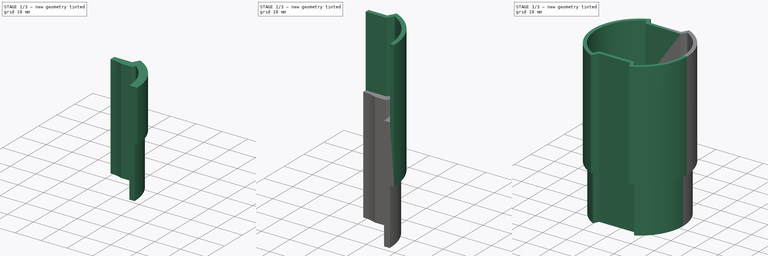
[diagram: build sequence overview — one tinted view per stage of 3, left to right]
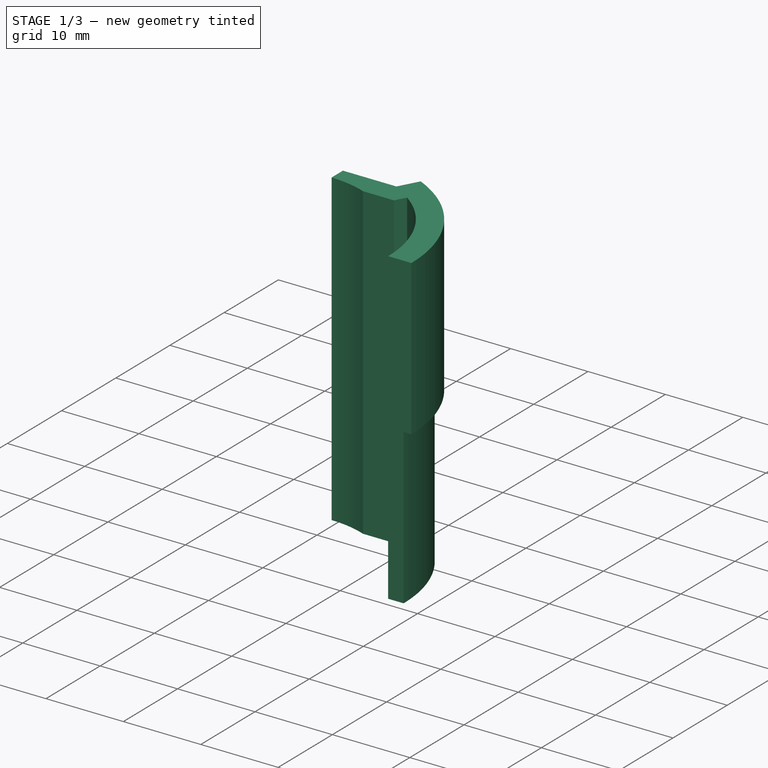
[diagram: stage 1 of 3 — iso view after this stage's code; geometry added in this stage tinted green]
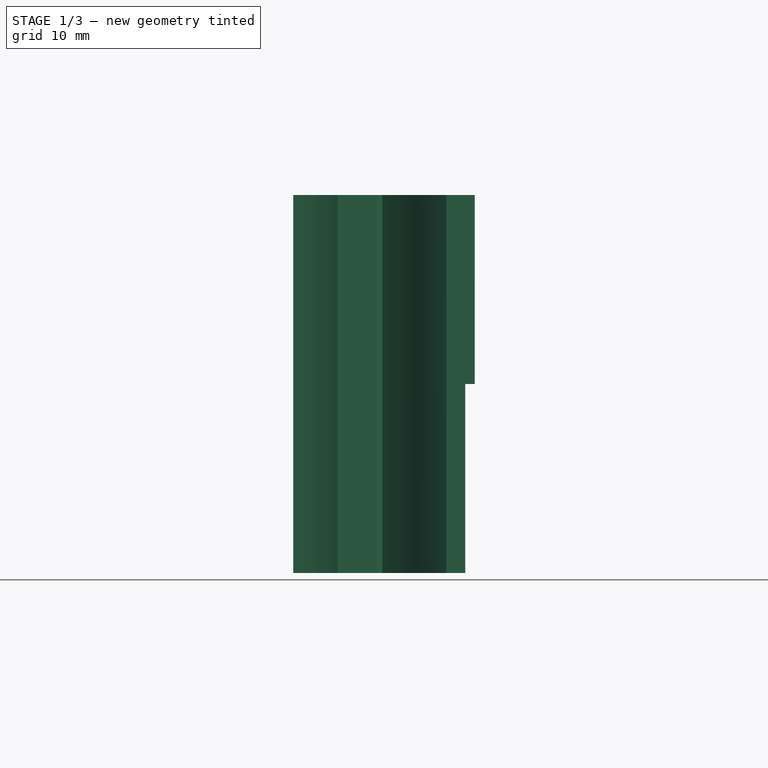
[diagram: stage 1 of 3 — front view after this stage's code; geometry added in this stage tinted green]
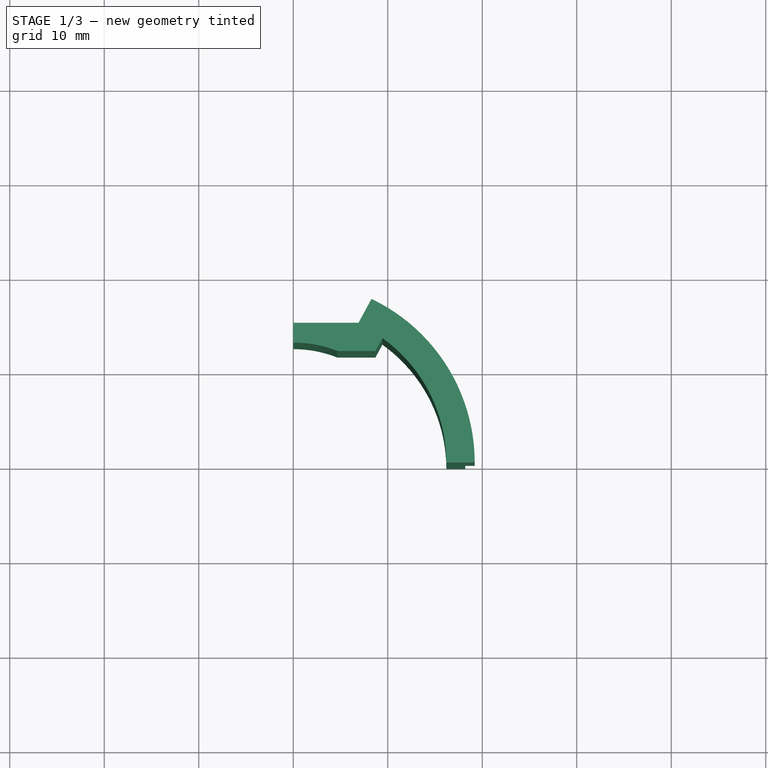
[diagram: stage 1 of 3 — top view after this stage's code; geometry added in this stage tinted green]
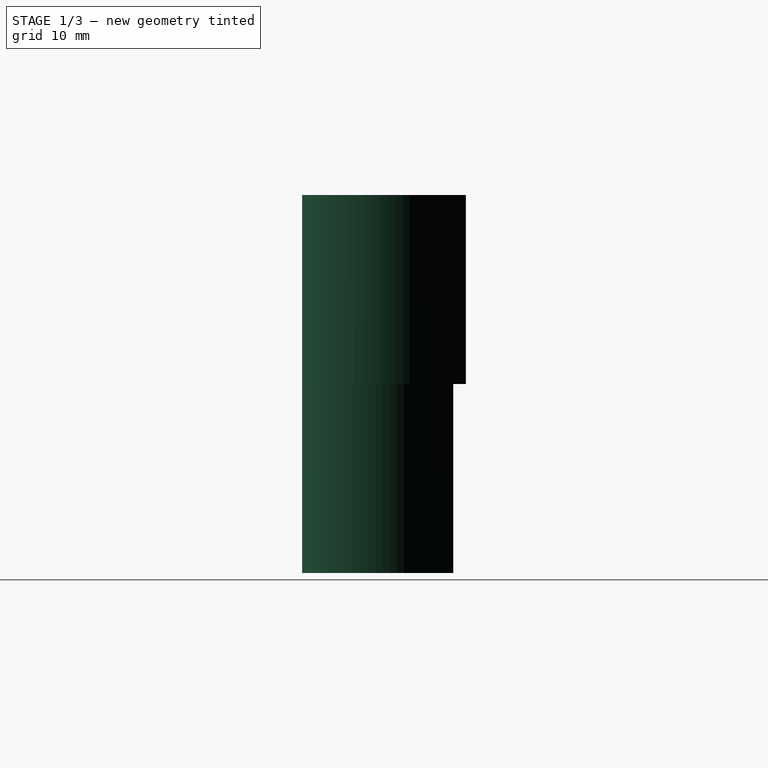
[diagram: stage 1 of 3 — right view after this stage's code; geometry added in this stage tinted green]
FCSTD DOCUMENT  (FreeCAD 1.0R39109 (Git))
Label: TubeExtender
License: All rights reserved
LicenseURL: http://en.wikipedia.org/wiki/All_rights_reserved
objects: Sketcher::SketchObject×3, PartDesign::Pad×3, PartDesign::Mirrored×2, PartDesign::Chamfer×1, PartDesign::MultiTransform×1, PartDesign::Body×1
note: 25 computed .brp shape members not serialized (recipe doc carries the construction recipe); baked Part::Feature solids carry a one-line shape summary decoded from their .brp

FEATURE [Sketcher::SketchObject] Sketch
  ArcFitTolerance = 1e-06
  AttachmentSupport = -> [XY_Plane]
  FullyConstrained = true
  MakeInternals = false
  MapMode = 5
  sketch-geometry (11):
    g0: ArcOfCircle CenterX=0 CenterY=0 CenterZ=0 NormalX=0 NormalY=0 NormalZ=1 AngleXU=0 Radius=18.2 StartAngle=0 EndAngle=1.07297
    g1: LineSegment StartX=0 StartY=13.8 StartZ=0 EndX=7.5 EndY=13.8 EndZ=0
    g2: LineSegment StartX=8.69074 StartY=15.991 StartZ=0 EndX=7.5 EndY=13.8 EndZ=0
    g3: ArcOfCircle CenterX=0 CenterY=0 CenterZ=0 NormalX=0 NormalY=0 NormalZ=1 AngleXU=0 Radius=16.2 StartAngle=0 EndAngle=0.949201
    g4: LineSegment StartX=16.2 StartY=0 StartZ=0 EndX=18.2 EndY=0 EndZ=0
    g5: LineSegment StartX=0 StartY=12.7 StartZ=0 EndX=0 EndY=13.8 EndZ=0
    g6: LineSegment [constr] StartX=7.5 StartY=13.8 StartZ=0 EndX=9.25725 EndY=12.845 EndZ=0
    g7: LineSegment StartX=9.43379 StartY=13.1698 StartZ=0 EndX=8.68933 EndY=11.8 EndZ=0
    g8: LineSegment StartX=8.68933 StartY=11.8 StartZ=0 EndX=4.69574 EndY=11.8 EndZ=0
    g9: LineSegment [constr] StartX=7.5 StartY=13.8 StartZ=0 EndX=7.5 EndY=11.8 EndZ=0
    g10: ArcOfCircle CenterX=0 CenterY=0 CenterZ=0 NormalX=0 NormalY=0 NormalZ=1 AngleXU=0 Radius=12.7 StartAngle=1.19206 EndAngle=1.5708
  constraints (33):
    c: Coincident(g0,g-1)
    c: PointOnObject(g0,g-1)
    c: Radius(g0) = 18.2
    c: PointOnObject(g1,g-2)
    c: Horizontal(g1)
    c: DistanceY(g0,g1) = 13.8
    c: DistanceX(g1,g1) = 7.5
    c: Coincident(g2,g0)
    c: Coincident(g2,g1)
    c: PointOnObject(g0,g2)
    c: Coincident(g3,g0)
    c: Coincident(g4,g3)
    c: Coincident(g4,g0)
    c: PointOnObject(g5,g-2)
    c: Coincident(g5,g1)
    c: DistanceX(g4,g4) = 2
    c: Coincident(g6,g1)
    c: Perpendicular(g2,g6)
    c: PointOnObject(g3,g-1)
    c: Coincident(g7,g3)
    c: PointOnObject(g6,g7)
    c: Parallel(g7,g2)
    c: Equal(g6,g4)
    c: Coincident(g8,g7)
    c: Horizontal(g8)
    c: Coincident(g9,g1)
    c: PointOnObject(g9,g8)
    c: Vertical(g9)
    c: Equal(g9,g4)
    c: Coincident(g10,g0)
    c: Coincident(g10,g5)
    c: Coincident(g10,g8)
    c: Radius(g10) = 12.7
FEATURE [PartDesign::Pad] Pad  label="Inner"
  Direction = (0,0,1)
  Length = 20
  Length2 = 20
  Profile = -> Sketch
  ReferenceAxis = -> Sketch [N_Axis]
  Refine = true
  Suppressed = false
  Type = 4
FEATURE [Sketcher::SketchObject] Sketch001
  ArcFitTolerance = 1e-06
  AttachmentSupport = -> [XY_Plane]
  FullyConstrained = true
  MakeInternals = false
  MapMode = 5
  sketch-geometry (13):
    g0: ArcOfCircle CenterX=0 CenterY=0 CenterZ=0 NormalX=0 NormalY=0 NormalZ=1 AngleXU=0 Radius=18.3 StartAngle=0 EndAngle=1.07844
    g1: LineSegment StartX=0 StartY=13.9 StartZ=0 EndX=7.44053 EndY=13.9 EndZ=0
    g2: ArcOfCircle CenterX=0 CenterY=0 CenterZ=0 NormalX=0 NormalY=0 NormalZ=1 AngleXU=0 Radius=19.75 StartAngle=0 EndAngle=1.15154
    g3: LineSegment StartX=19.75 StartY=0 StartZ=0 EndX=18.3 EndY=0 EndZ=0
    g4: LineSegment StartX=6.57827 StartY=15.35 StartZ=0 EndX=0 EndY=15.35 EndZ=0
    g5: LineSegment StartX=0 StartY=15.35 StartZ=0 EndX=0 EndY=13.9 EndZ=0
    g6: LineSegment [constr] StartX=7.44053 StartY=13.9 StartZ=0 EndX=6.16653 EndY=14.5924 EndZ=0
    g7: LineSegment StartX=6.57827 StartY=15.35 StartZ=0 EndX=8.03993 EndY=18.0395 EndZ=0
    g8: LineSegment [constr] StartX=0 StartY=13.8 StartZ=0 EndX=7.5 EndY=13.8 EndZ=0
    g9: LineSegment [constr] StartX=7.5 StartY=13.8 StartZ=0 EndX=0 EndY=0 EndZ=0
    g10: LineSegment StartX=8.6505 StartY=16.1263 StartZ=0 EndX=7.44053 EndY=13.9 EndZ=0
    g11: LineSegment [constr] StartX=7.44053 StartY=13.9 StartZ=0 EndX=7.44053 EndY=13.8 EndZ=0
    g12: LineSegment [constr] StartX=7.44053 StartY=13.9 StartZ=0 EndX=7.5284 EndY=13.8522 EndZ=0
  constraints (39):
    c: Coincident(g0,g-1)
    c: PointOnObject(g0,g-1)
    c: PointOnObject(g1,g-2)
    c: Horizontal(g1)
    c: Coincident(g2,g0)
    c: Coincident(g3,g2)
    c: Coincident(g3,g0)
    c: PointOnObject(g4,g-2)
    c: Horizontal(g4)
    c: Coincident(g5,g4)
    c: Coincident(g5,g1)
    c: Equal(g3,g5)
    c: Coincident(g6,g1)
    c: Equal(g6,g5)
    c: PointOnObject(g2,g-1)
    c: DistanceX(g0,g2) = 19.75
    c: DistanceX(g3,g3) = 1.45
    c: Coincident(g7,g4)
    c: Coincident(g7,g2)
    c: PointOnObject(g6,g7)
    c: PointOnObject(g8,g-2)
    c: Horizontal(g8)
    c: DistanceX(g8,g8) = 7.5
    c: DistanceY(g0,g8) = 13.8
    c: Coincident(g9,g8)
    c: Coincident(g9,g0)
    c: DistanceY(g8,g1) = 0.1
    c: Coincident(g10,g0)
    c: Coincident(g10,g1)
    c: Perpendicular(g10,g6)
    c: Parallel(g10,g7)
    c: Parallel(g7,g9)
    c: Coincident(g11,g1)
    c: PointOnObject(g11,g8)
    c: Vertical(g11)
    c: Coincident(g12,g1)
    c: PointOnObject(g12,g9)
    c: Equal(g11,g12)
    c: Perpendicular(g10,g12)
FEATURE [PartDesign::Mirrored] Mirrored
  MirrorPlane = -> YZ_Plane
  Refine = true
  Suppressed = false
  TransformMode = 0
FEATURE [PartDesign::Mirrored] Mirrored001
  MirrorPlane = -> XZ_Plane
  Refine = true
  Suppressed = false
  TransformMode = 0
FEATURE [Sketcher::SketchObject] Sketch002
  ArcFitTolerance = 1e-06
  AttachmentSupport = -> [XY_Plane]
  FullyConstrained = true
  MakeInternals = false
  MapMode = 5
  sketch-geometry (9):
    g0: ArcOfCircle CenterX=0 CenterY=0 CenterZ=0 NormalX=0 NormalY=0 NormalZ=1 AngleXU=0 Radius=18.2 StartAngle=0 EndAngle=1.07297
    g1: LineSegment StartX=0 StartY=13.8 StartZ=0 EndX=7.5 EndY=13.8 EndZ=0
    g2: LineSegment StartX=8.69074 StartY=15.991 StartZ=0 EndX=7.5 EndY=13.8 EndZ=0
    g3: ArcOfCircle CenterX=0 CenterY=0 CenterZ=0 NormalX=0 NormalY=0 NormalZ=1 AngleXU=0 Radius=19.2 StartAngle=0 EndAngle=1.12508
    g4: LineSegment StartX=19.2 StartY=0 StartZ=0 EndX=18.2 EndY=0 EndZ=0
    g5: LineSegment StartX=6.90534 StartY=14.8 StartZ=0 EndX=0 EndY=14.8 EndZ=0
    g6: LineSegment StartX=0 StartY=14.8 StartZ=0 EndX=0 EndY=13.8 EndZ=0
    g7: LineSegment [constr] StartX=7.5 StartY=13.8 StartZ=0 EndX=6.62138 EndY=14.2775 EndZ=0
    g8: LineSegment StartX=8.27719 StartY=17.3242 StartZ=0 EndX=6.90534 EndY=14.8 EndZ=0
  constraints (27):
    c: Coincident(g0,g-1)
    c: PointOnObject(g0,g-1)
    c: Radius(g0) = 18.2
    c: PointOnObject(g1,g-2)
    c: Horizontal(g1)
    c: DistanceY(g0,g1) = 13.8
    c: DistanceX(g1,g1) = 7.5
    c: Coincident(g2,g0)
    c: Coincident(g2,g1)
    c: PointOnObject(g0,g2)
    c: Coincident(g3,g0)
    c: Coincident(g4,g3)
    c: Coincident(g4,g0)
    c: PointOnObject(g5,g-2)
    c: Horizontal(g5)
    c: Coincident(g6,g5)
    c: Coincident(g6,g1)
    c: Equal(g4,g6)
    c: Coincident(g7,g1)
    c: Perpendicular(g2,g7)
    c: Equal(g7,g6)
    c: PointOnObject(g3,g-1)
    c: Coincident(g8,g3)
    c: Coincident(g8,g5)
    c: PointOnObject(g7,g8)
    c: Parallel(g8,g2)
    c: DistanceX(g4,g4) = 1
FEATURE [PartDesign::Pad] Pad002  label="Connector"
  BaseFeature = -> Pad
  Direction = (0,0,1)
  Length = 20
  Length2 = 10
  Profile = -> Sketch002
  ReferenceAxis = -> Sketch002 [N_Axis]
  Refine = true
  Suppressed = false
  Type = 0
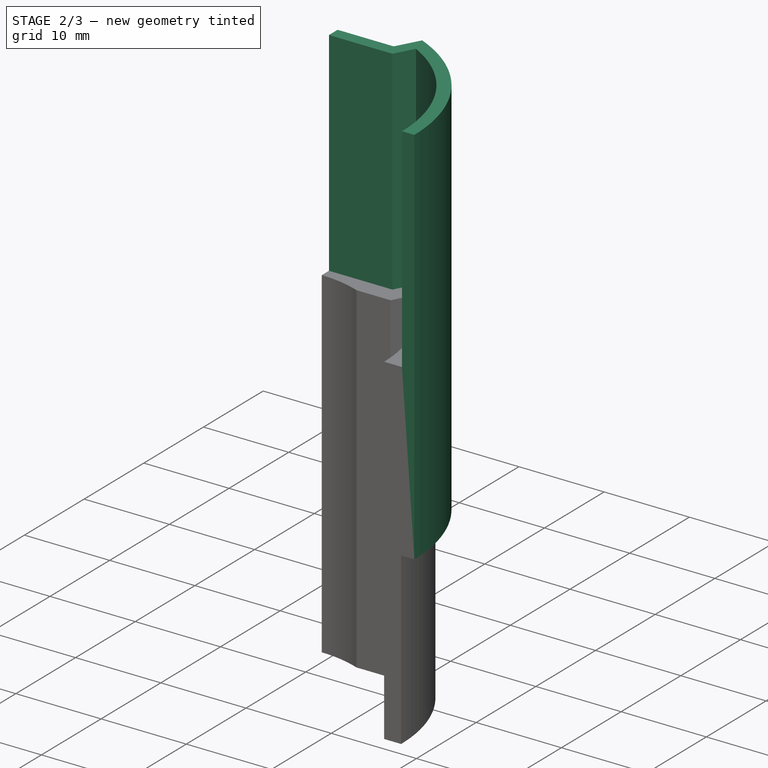
[diagram: stage 2 of 3 — iso view after this stage's code; geometry added in this stage tinted green]
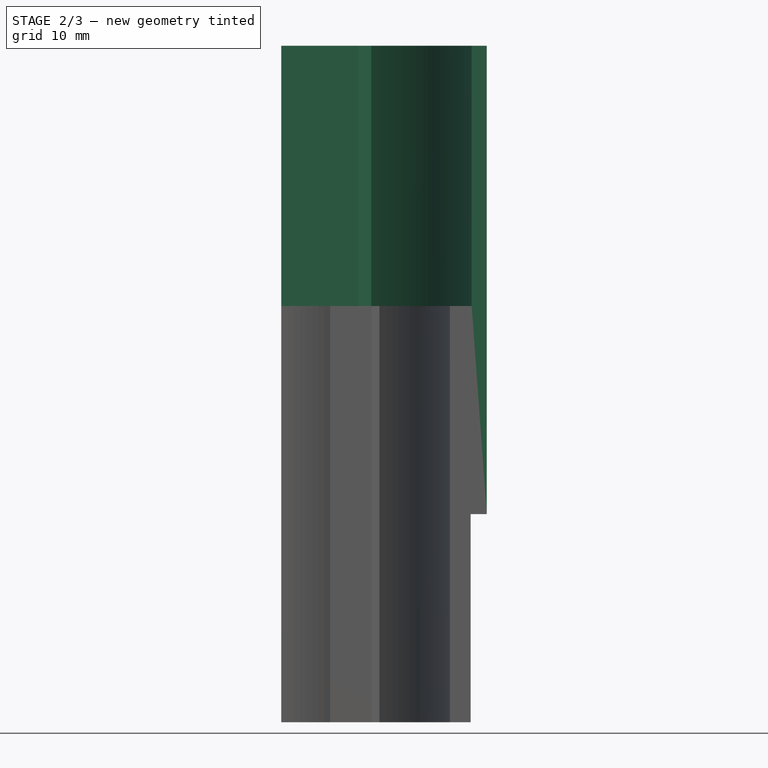
[diagram: stage 2 of 3 — front view after this stage's code; geometry added in this stage tinted green]
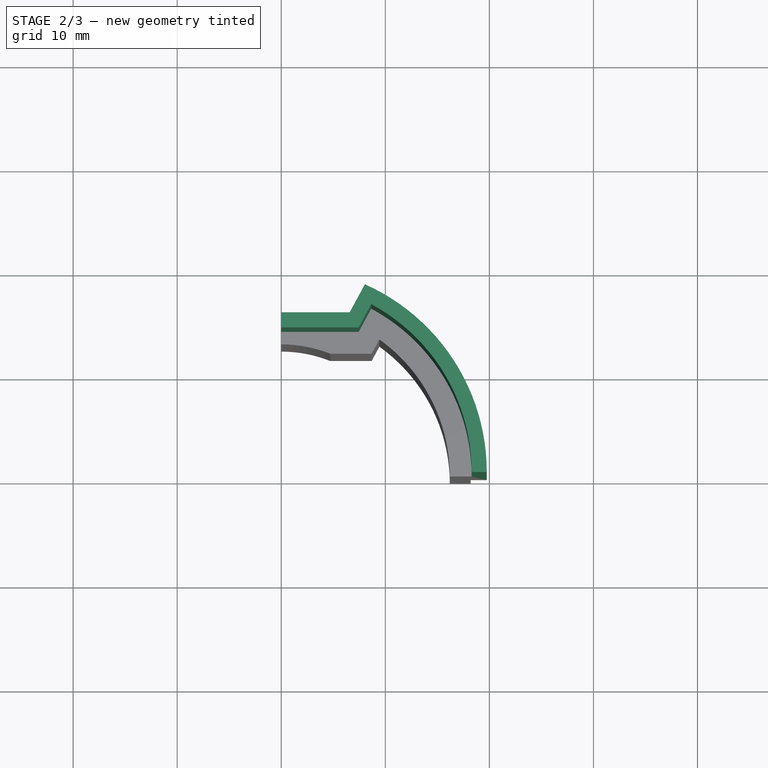
[diagram: stage 2 of 3 — top view after this stage's code; geometry added in this stage tinted green]
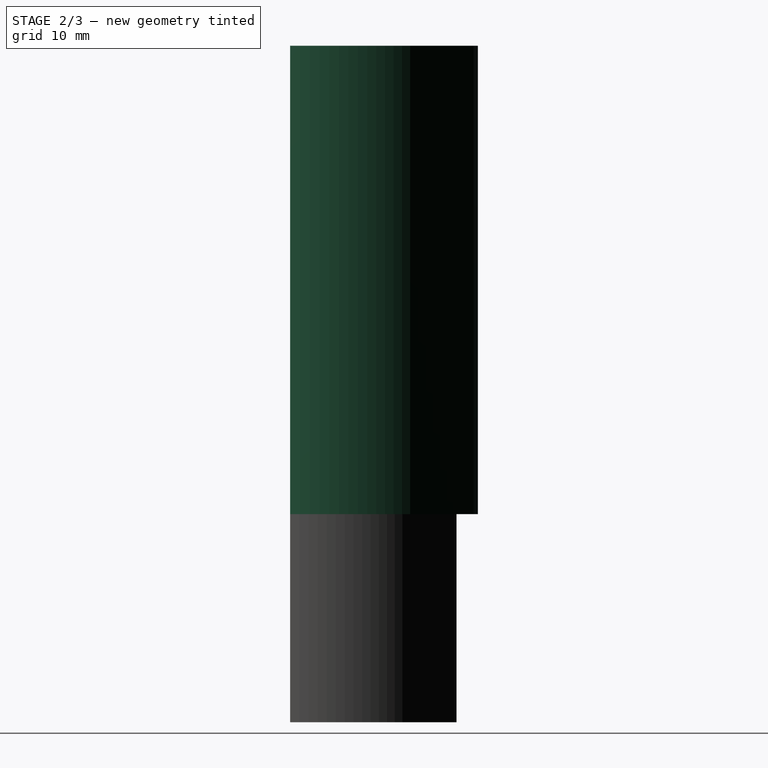
[diagram: stage 2 of 3 — right view after this stage's code; geometry added in this stage tinted green]
FEATURE [PartDesign::Pad] Pad001  label="Outer"
  BaseFeature = -> Pad002
  Direction = (0,0,1)
  Length = 45
  Length2 = 10
  Profile = -> Sketch001
  ReferenceAxis = -> Sketch001 [N_Axis]
  Refine = true
  Suppressed = false
  Type = 0
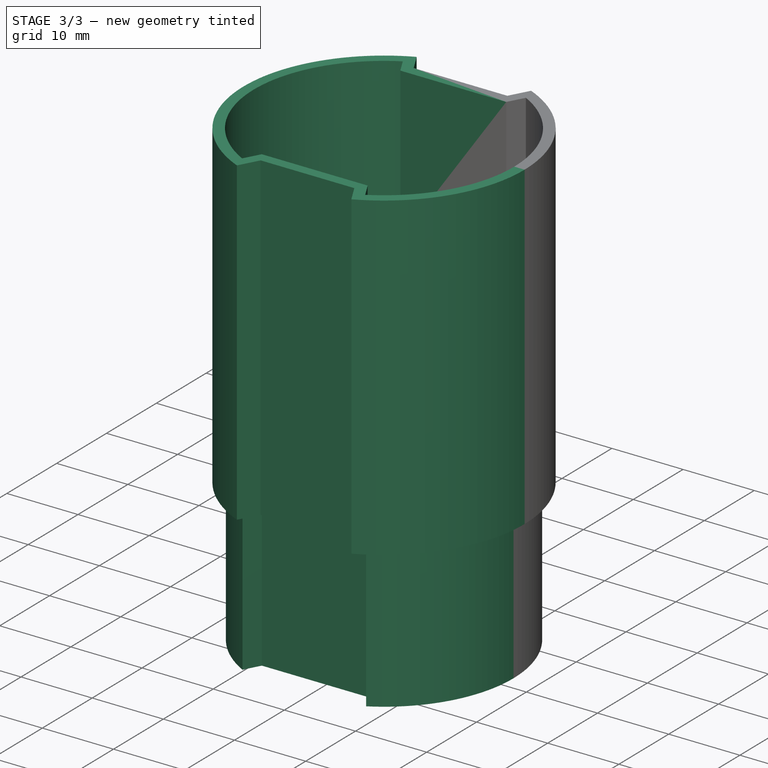
[diagram: stage 3 of 3 — iso view after this stage's code; geometry added in this stage tinted green]
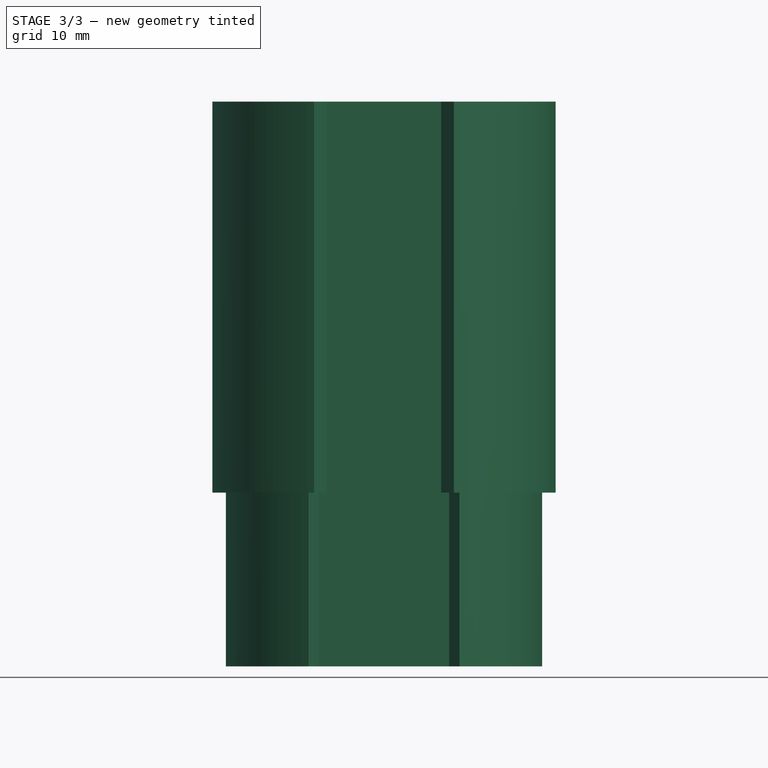
[diagram: stage 3 of 3 — front view after this stage's code; geometry added in this stage tinted green]
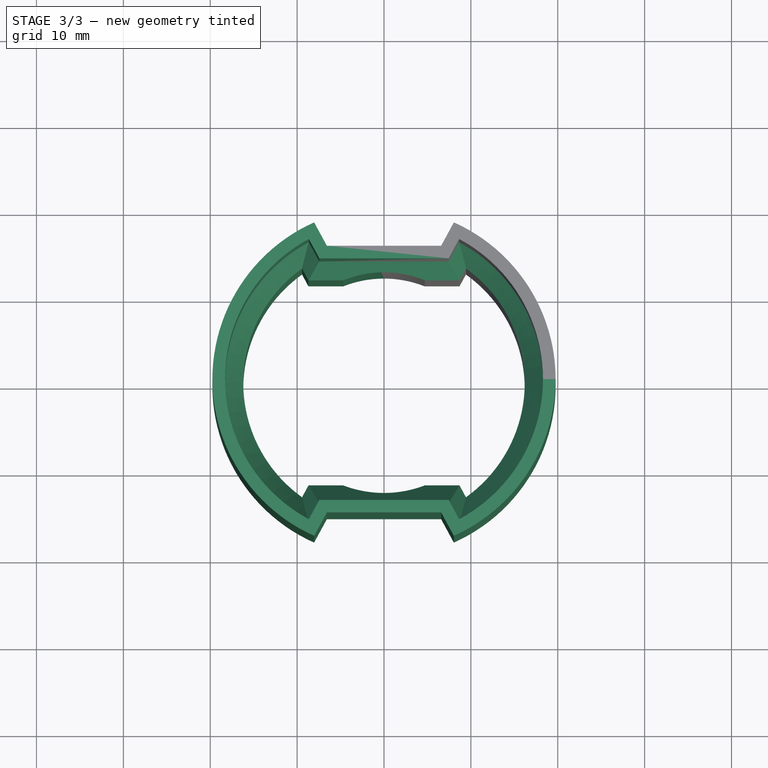
[diagram: stage 3 of 3 — top view after this stage's code; geometry added in this stage tinted green]
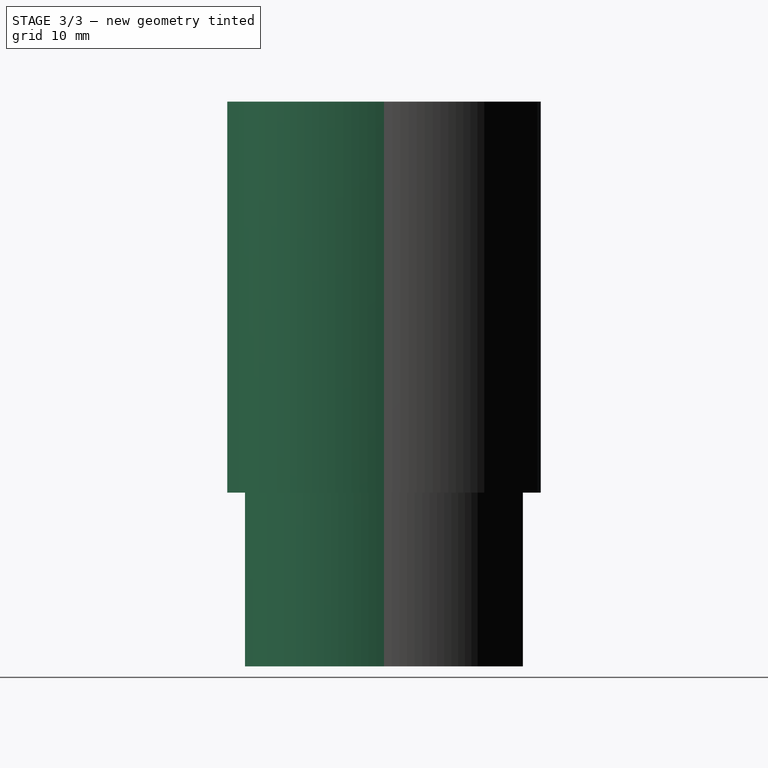
[diagram: stage 3 of 3 — right view after this stage's code; geometry added in this stage tinted green]
FEATURE [PartDesign::Chamfer] Chamfer
  Angle = 60
  Base = -> Pad001 [Edge30,Edge29,Edge28]
  BaseFeature = -> Pad001
  ChamferType = 2
  FlipDirection = false
  Refine = true
  Size = 2.099
  Size2 = 1
  SupportTransform = false
  Suppressed = false
  UseAllEdges = false
FEATURE [PartDesign::MultiTransform] MultiTransform
  BaseFeature = -> Chamfer
  Refine = true
  Suppressed = false
  TransformMode = 1
  Transformations = -> [Mirrored,Mirrored001]
FEATURE [PartDesign::Body] Body
  AllowCompound = false
  Group = -> [Sketch,Pad,Sketch001,Sketch002,Pad002,Pad001,Chamfer,MultiTransform,Mirrored,Mirrored001]
  Origin = -> Origin
  Tip = -> MultiTransform
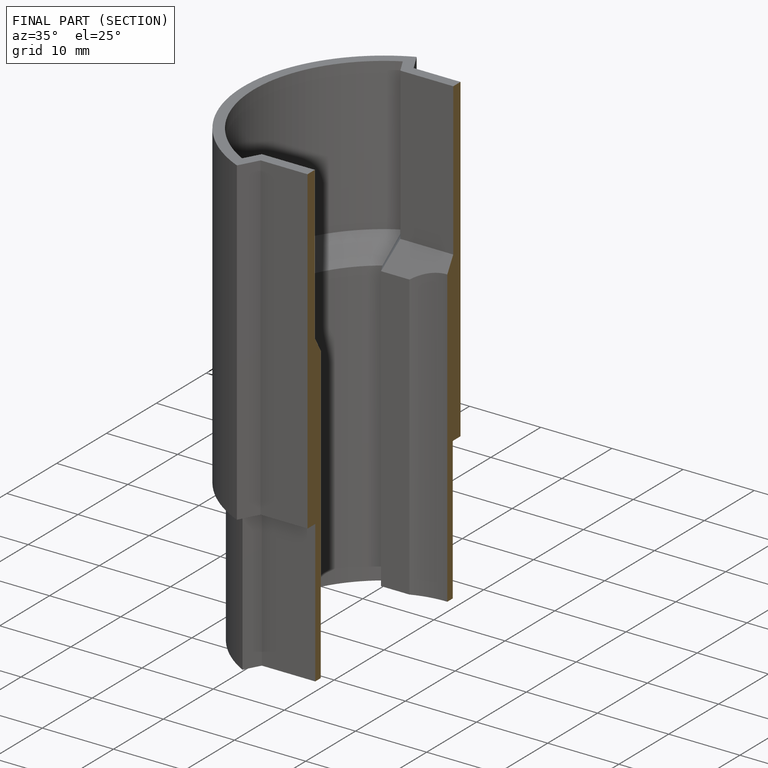
[diagram: finished part — half-section view (interior)]
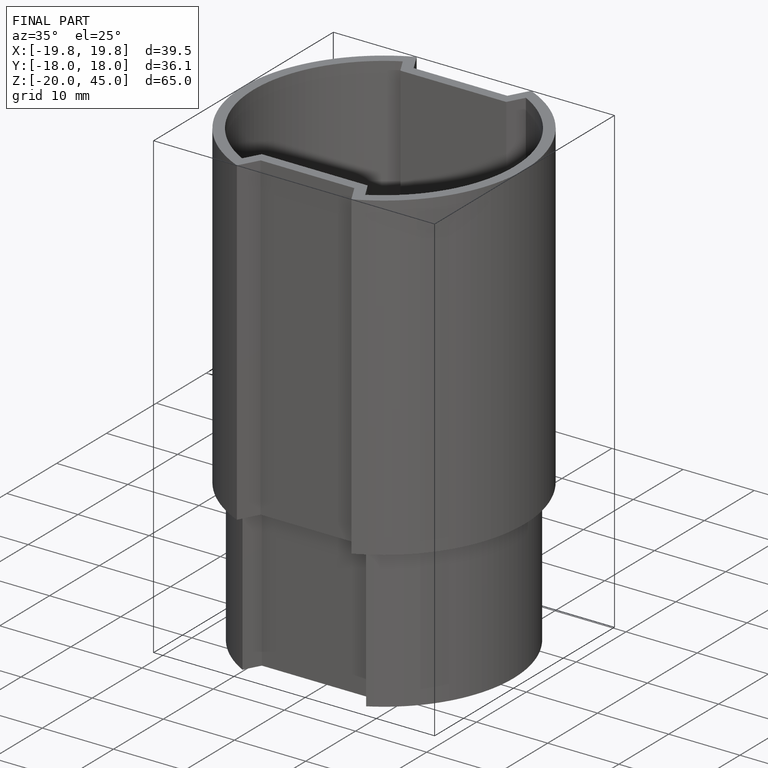
[diagram: finished part — iso view with bounding-box wireframe]
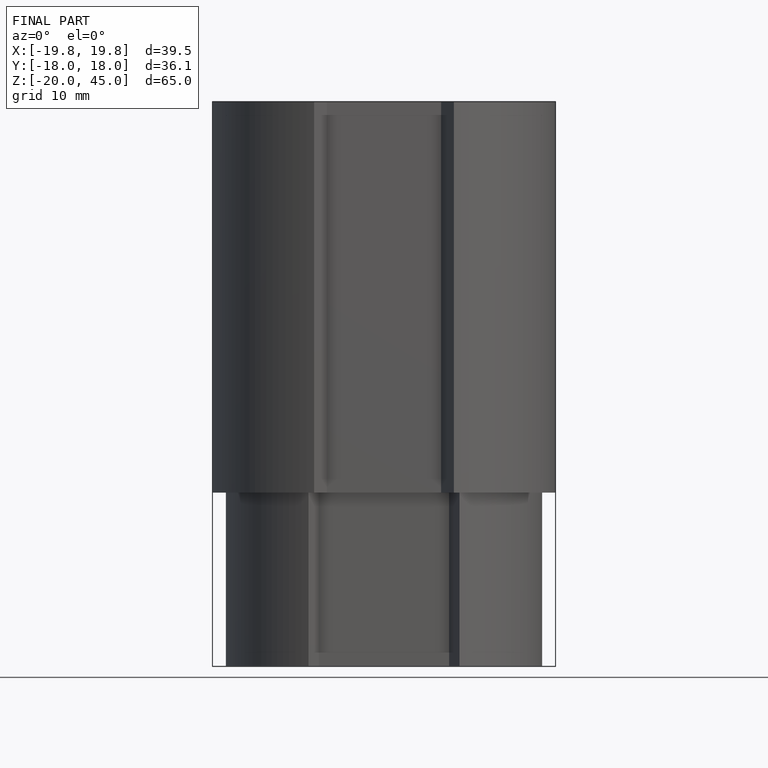
[diagram: finished part — front view with bounding-box wireframe]
